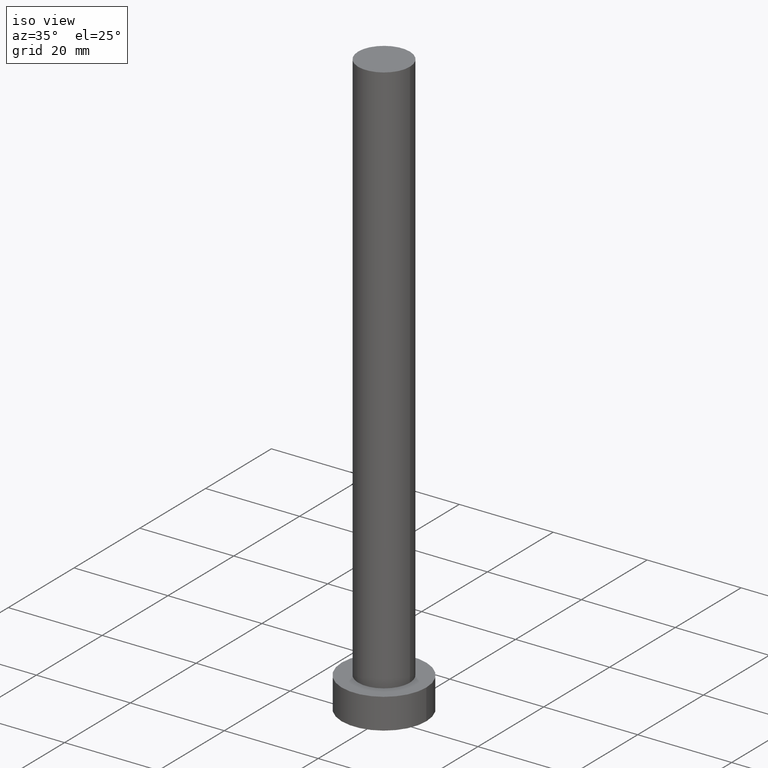
[diagram: clean part render]
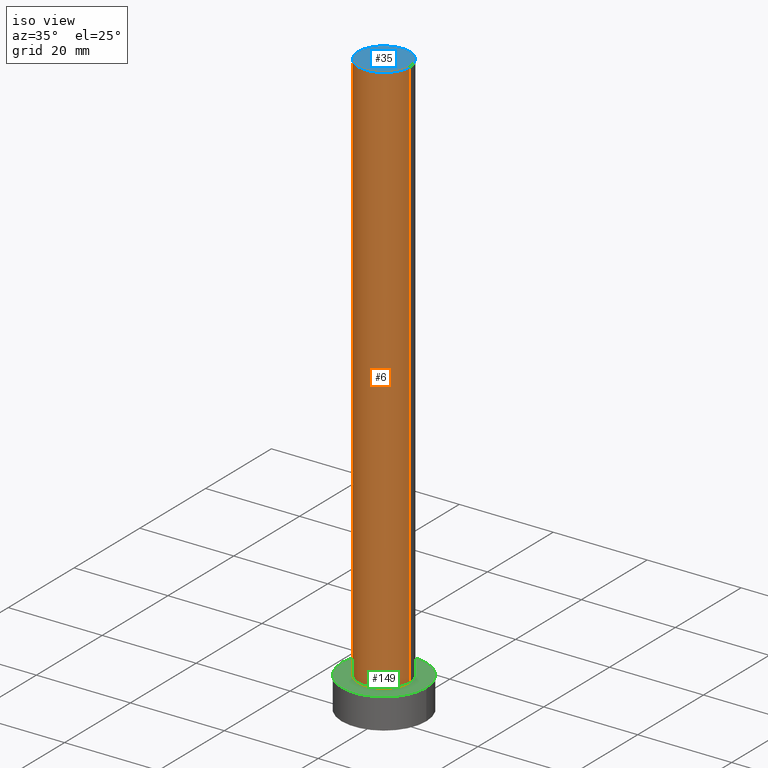
[diagram: same view with three faces highlighted in distinct colors, each labeled with its STEP entity id]
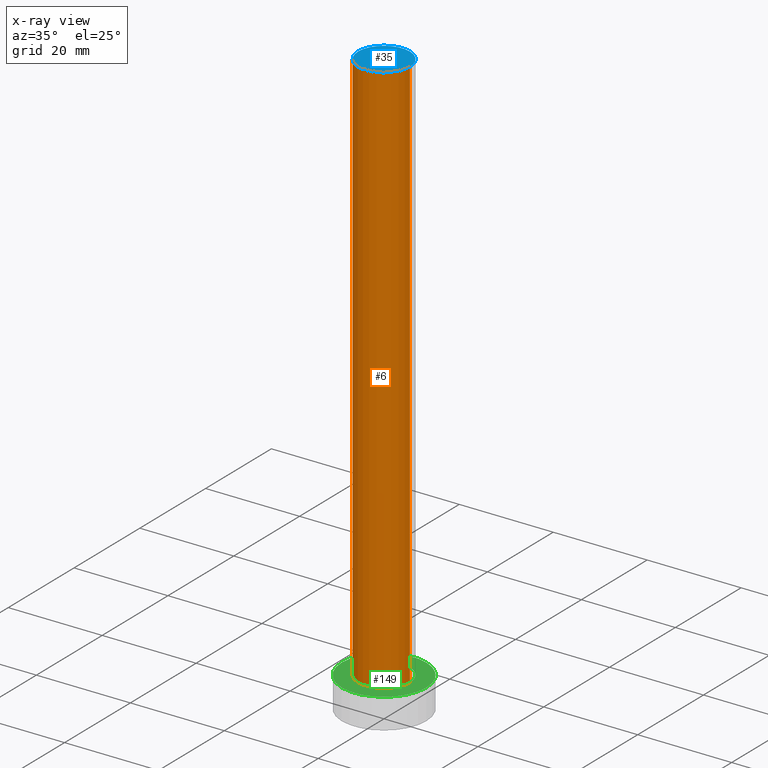
[diagram: x-ray of the same camera — body ghosted, the three highlighted faces saturated]
A machine part, iso view with three faces highlighted in distinct colors.
The next image is the same camera in x-ray (body ghosted, the three faces saturated) — at least one of them is partly hidden behind the body in this view.
Their STEP definitions:

[orange] entity #6 — the highlighted cylindrical surface (edge-blend (fillet) strip) has radius 5.5 mm, axis along (-0, -0, -1).
#3 = CARTESIAN_POINT ( 'NONE',  ( -5.500000000000000000, 0.000000000000000000, 125.0000000000000000 ) ) ;
#6 = ADVANCED_FACE ( 'NONE', ( #224 ), #112, .T. ) ;
#20 = DIRECTION ( 'NONE',  ( 1.000000000000000000, 0.000000000000000000, 0.000000000000000000 ) ) ;
#22 = LINE ( 'NONE', #3, #42 ) ;
#23 = DIRECTION ( 'NONE',  ( -0.000000000000000000, -0.000000000000000000, -1.000000000000000000 ) ) ;
#25 = AXIS2_PLACEMENT_3D ( 'NONE', #95, #159, #225 ) ;
#30 = EDGE_CURVE ( 'NONE', #39, #166, #22, .T. ) ;
#36 = DIRECTION ( 'NONE',  ( -1.000000000000000000, 0.000000000000000000, 0.000000000000000000 ) ) ;
#38 = CIRCLE ( 'NONE', #188, 5.500000000000000000 ) ;
#39 = VERTEX_POINT ( 'NONE', #245 ) ;
#42 = VECTOR ( 'NONE', #77, 1000.000000000000000 ) ;
#46 = ORIENTED_EDGE ( 'NONE', *, *, #237, .T. ) ;
#49 = AXIS2_PLACEMENT_3D ( 'NONE', #240, #99, #36 ) ;
#64 = ORIENTED_EDGE ( 'NONE', *, *, #30, .T. ) ;
#67 = VERTEX_POINT ( 'NONE', #116 ) ;
#77 = DIRECTION ( 'NONE',  ( -0.000000000000000000, -0.000000000000000000, -1.000000000000000000 ) ) ;
#83 = EDGE_CURVE ( 'NONE', #124, #67, #154, .T. ) ;
#92 = VECTOR ( 'NONE', #23, 1000.000000000000000 ) ;
#94 = CARTESIAN_POINT ( 'NONE',  ( 0.000000000000000000, 0.000000000000000000, 6.500000000000000000 ) ) ;
#95 = CARTESIAN_POINT ( 'NONE',  ( 0.000000000000000000, 0.000000000000000000, 125.0000000000000000 ) ) ;
#99 = DIRECTION ( 'NONE',  ( -0.000000000000000000, -0.000000000000000000, -1.000000000000000000 ) ) ;
#112 = CYLINDRICAL_SURFACE ( 'NONE', #49, 5.500000000000000000 ) ;
#116 = CARTESIAN_POINT ( 'NONE',  ( 5.500000000000000000, 6.735557395310442023E-16, 6.500000000000000000 ) ) ;
#124 = VERTEX_POINT ( 'NONE', #139 ) ;
#129 = EDGE_LOOP ( 'NONE', ( #226, #171, #64, #46 ) ) ;
#139 = CARTESIAN_POINT ( 'NONE',  ( 5.500000000000000000, 6.735557395310442023E-16, 125.0000000000000000 ) ) ;
#154 = LINE ( 'NONE', #207, #92 ) ;
#159 = DIRECTION ( 'NONE',  ( 0.000000000000000000, 0.000000000000000000, 1.000000000000000000 ) ) ;
#166 = VERTEX_POINT ( 'NONE', #196 ) ;
#171 = ORIENTED_EDGE ( 'NONE', *, *, #250, .F. ) ;
#188 = AXIS2_PLACEMENT_3D ( 'NONE', #94, #205, #20 ) ;
#193 = CIRCLE ( 'NONE', #25, 5.500000000000000000 ) ;
#196 = CARTESIAN_POINT ( 'NONE',  ( -5.500000000000000000, 0.000000000000000000, 6.500000000000000000 ) ) ;
#205 = DIRECTION ( 'NONE',  ( 0.000000000000000000, 0.000000000000000000, 1.000000000000000000 ) ) ;
#207 = CARTESIAN_POINT ( 'NONE',  ( 5.500000000000000000, 6.735557395310442023E-16, 125.0000000000000000 ) ) ;
#224 = FACE_OUTER_BOUND ( 'NONE', #129, .T. ) ;
#225 = DIRECTION ( 'NONE',  ( 1.000000000000000000, 0.000000000000000000, 0.000000000000000000 ) ) ;
#226 = ORIENTED_EDGE ( 'NONE', *, *, #83, .F. ) ;
#237 = EDGE_CURVE ( 'NONE', #166, #67, #38, .T. ) ;
#240 = CARTESIAN_POINT ( 'NONE',  ( 0.000000000000000000, 0.000000000000000000, 125.0000000000000000 ) ) ;
#245 = CARTESIAN_POINT ( 'NONE',  ( -5.500000000000000000, 0.000000000000000000, 125.0000000000000000 ) ) ;
#250 = EDGE_CURVE ( 'NONE', #39, #124, #193, .T. ) ;

[blue] entity #35 — the highlighted planar face has unit normal (0, 0, 1).
#25 = AXIS2_PLACEMENT_3D ( 'NONE', #95, #159, #225 ) ;
#33 = CIRCLE ( 'NONE', #150, 5.500000000000000000 ) ;
#35 = ADVANCED_FACE ( 'NONE', ( #158 ), #40, .T. ) ;
#39 = VERTEX_POINT ( 'NONE', #245 ) ;
#40 = PLANE ( 'NONE',  #111 ) ;
#54 = EDGE_LOOP ( 'NONE', ( #84, #160 ) ) ;
#57 = DIRECTION ( 'NONE',  ( 1.000000000000000000, 0.000000000000000000, -0.000000000000000000 ) ) ;
#84 = ORIENTED_EDGE ( 'NONE', *, *, #250, .T. ) ;
#95 = CARTESIAN_POINT ( 'NONE',  ( 0.000000000000000000, 0.000000000000000000, 125.0000000000000000 ) ) ;
#111 = AXIS2_PLACEMENT_3D ( 'NONE', #138, #244, #57 ) ;
#124 = VERTEX_POINT ( 'NONE', #139 ) ;
#136 = DIRECTION ( 'NONE',  ( 1.000000000000000000, 0.000000000000000000, 0.000000000000000000 ) ) ;
#138 = CARTESIAN_POINT ( 'NONE',  ( 0.000000000000000000, 0.000000000000000000, 125.0000000000000000 ) ) ;
#139 = CARTESIAN_POINT ( 'NONE',  ( 5.500000000000000000, 6.735557395310442023E-16, 125.0000000000000000 ) ) ;
#150 = AXIS2_PLACEMENT_3D ( 'NONE', #178, #151, #136 ) ;
#151 = DIRECTION ( 'NONE',  ( 0.000000000000000000, 0.000000000000000000, 1.000000000000000000 ) ) ;
#158 = FACE_OUTER_BOUND ( 'NONE', #54, .T. ) ;
#159 = DIRECTION ( 'NONE',  ( 0.000000000000000000, 0.000000000000000000, 1.000000000000000000 ) ) ;
#160 = ORIENTED_EDGE ( 'NONE', *, *, #219, .T. ) ;
#178 = CARTESIAN_POINT ( 'NONE',  ( 0.000000000000000000, 0.000000000000000000, 125.0000000000000000 ) ) ;
#193 = CIRCLE ( 'NONE', #25, 5.500000000000000000 ) ;
#219 = EDGE_CURVE ( 'NONE', #124, #39, #33, .T. ) ;
#225 = DIRECTION ( 'NONE',  ( 1.000000000000000000, 0.000000000000000000, 0.000000000000000000 ) ) ;
#244 = DIRECTION ( 'NONE',  ( 0.000000000000000000, 0.000000000000000000, 1.000000000000000000 ) ) ;
#245 = CARTESIAN_POINT ( 'NONE',  ( -5.500000000000000000, 0.000000000000000000, 125.0000000000000000 ) ) ;
#250 = EDGE_CURVE ( 'NONE', #39, #124, #193, .T. ) ;

[green] entity #149 — the highlighted planar face has unit normal (0, 0, 1).
#11 = VERTEX_POINT ( 'NONE', #221 ) ;
#20 = DIRECTION ( 'NONE',  ( 1.000000000000000000, 0.000000000000000000, 0.000000000000000000 ) ) ;
#24 = AXIS2_PLACEMENT_3D ( 'NONE', #184, #223, #63 ) ;
#26 = FACE_BOUND ( 'NONE', #201, .T. ) ;
#34 = ORIENTED_EDGE ( 'NONE', *, *, #123, .T. ) ;
#38 = CIRCLE ( 'NONE', #188, 5.500000000000000000 ) ;
#41 = EDGE_CURVE ( 'NONE', #67, #166, #69, .T. ) ;
#61 = DIRECTION ( 'NONE',  ( 0.000000000000000000, 0.000000000000000000, 1.000000000000000000 ) ) ;
#63 = DIRECTION ( 'NONE',  ( 1.000000000000000000, 0.000000000000000000, 0.000000000000000000 ) ) ;
#67 = VERTEX_POINT ( 'NONE', #116 ) ;
#68 = DIRECTION ( 'NONE',  ( 1.000000000000000000, 0.000000000000000000, 0.000000000000000000 ) ) ;
#69 = CIRCLE ( 'NONE', #192, 5.500000000000000000 ) ;
#81 = CARTESIAN_POINT ( 'NONE',  ( 0.000000000000000000, 0.000000000000000000, 6.500000000000000000 ) ) ;
#86 = EDGE_LOOP ( 'NONE', ( #253, #34 ) ) ;
#91 = DIRECTION ( 'NONE',  ( 0.000000000000000000, 0.000000000000000000, 1.000000000000000000 ) ) ;
#94 = CARTESIAN_POINT ( 'NONE',  ( 0.000000000000000000, 0.000000000000000000, 6.500000000000000000 ) ) ;
#116 = CARTESIAN_POINT ( 'NONE',  ( 5.500000000000000000, 6.735557395310442023E-16, 6.500000000000000000 ) ) ;
#117 = AXIS2_PLACEMENT_3D ( 'NONE', #81, #162, #218 ) ;
#123 = EDGE_CURVE ( 'NONE', #11, #190, #170, .T. ) ;
#128 = CARTESIAN_POINT ( 'NONE',  ( -9.000000000000000000, 0.000000000000000000, 6.500000000000000000 ) ) ;
#132 = FACE_OUTER_BOUND ( 'NONE', #86, .T. ) ;
#141 = CIRCLE ( 'NONE', #148, 9.000000000000000000 ) ;
#148 = AXIS2_PLACEMENT_3D ( 'NONE', #254, #91, #68 ) ;
#149 = ADVANCED_FACE ( 'NONE', ( #26, #132 ), #186, .T. ) ;
#162 = DIRECTION ( 'NONE',  ( 0.000000000000000000, 0.000000000000000000, 1.000000000000000000 ) ) ;
#166 = VERTEX_POINT ( 'NONE', #196 ) ;
#170 = CIRCLE ( 'NONE', #24, 9.000000000000000000 ) ;
#179 = CARTESIAN_POINT ( 'NONE',  ( 0.000000000000000000, 0.000000000000000000, 6.500000000000000000 ) ) ;
#182 = DIRECTION ( 'NONE',  ( 1.000000000000000000, 0.000000000000000000, 0.000000000000000000 ) ) ;
#184 = CARTESIAN_POINT ( 'NONE',  ( 0.000000000000000000, 0.000000000000000000, 6.500000000000000000 ) ) ;
#186 = PLANE ( 'NONE',  #117 ) ;
#188 = AXIS2_PLACEMENT_3D ( 'NONE', #94, #205, #20 ) ;
#190 = VERTEX_POINT ( 'NONE', #128 ) ;
#192 = AXIS2_PLACEMENT_3D ( 'NONE', #179, #61, #182 ) ;
#194 = EDGE_CURVE ( 'NONE', #190, #11, #141, .T. ) ;
#196 = CARTESIAN_POINT ( 'NONE',  ( -5.500000000000000000, 0.000000000000000000, 6.500000000000000000 ) ) ;
#201 = EDGE_LOOP ( 'NONE', ( #233, #204 ) ) ;
#204 = ORIENTED_EDGE ( 'NONE', *, *, #41, .F. ) ;
#205 = DIRECTION ( 'NONE',  ( 0.000000000000000000, 0.000000000000000000, 1.000000000000000000 ) ) ;
#218 = DIRECTION ( 'NONE',  ( 1.000000000000000000, 0.000000000000000000, -0.000000000000000000 ) ) ;
#221 = CARTESIAN_POINT ( 'NONE',  ( 9.000000000000000000, 1.102182119232617517E-15, 6.500000000000000000 ) ) ;
#223 = DIRECTION ( 'NONE',  ( 0.000000000000000000, 0.000000000000000000, 1.000000000000000000 ) ) ;
#233 = ORIENTED_EDGE ( 'NONE', *, *, #237, .F. ) ;
#237 = EDGE_CURVE ( 'NONE', #166, #67, #38, .T. ) ;
#253 = ORIENTED_EDGE ( 'NONE', *, *, #194, .T. ) ;
#254 = CARTESIAN_POINT ( 'NONE',  ( 0.000000000000000000, 0.000000000000000000, 6.500000000000000000 ) ) ;